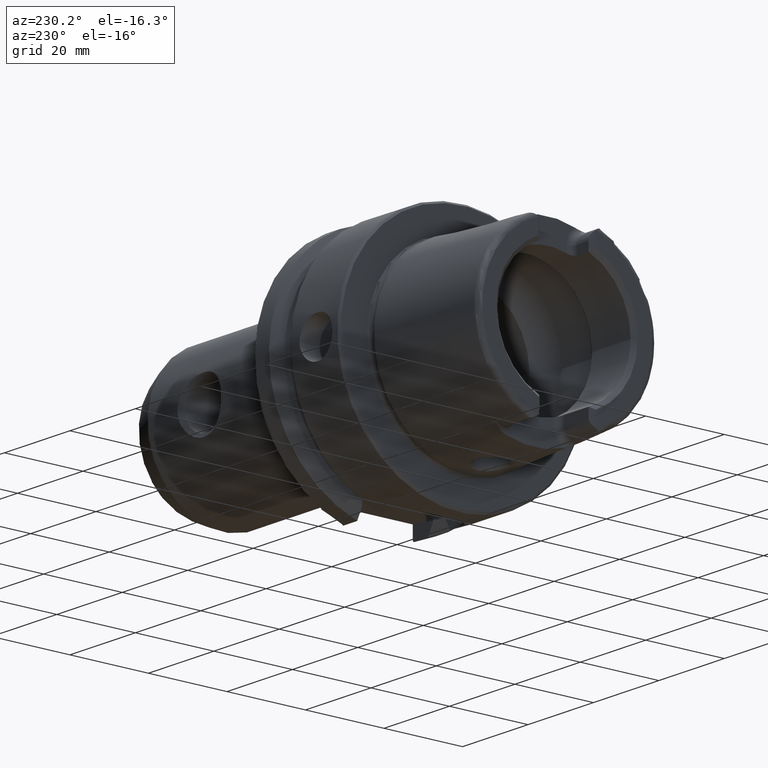
[diagram: clean part render]
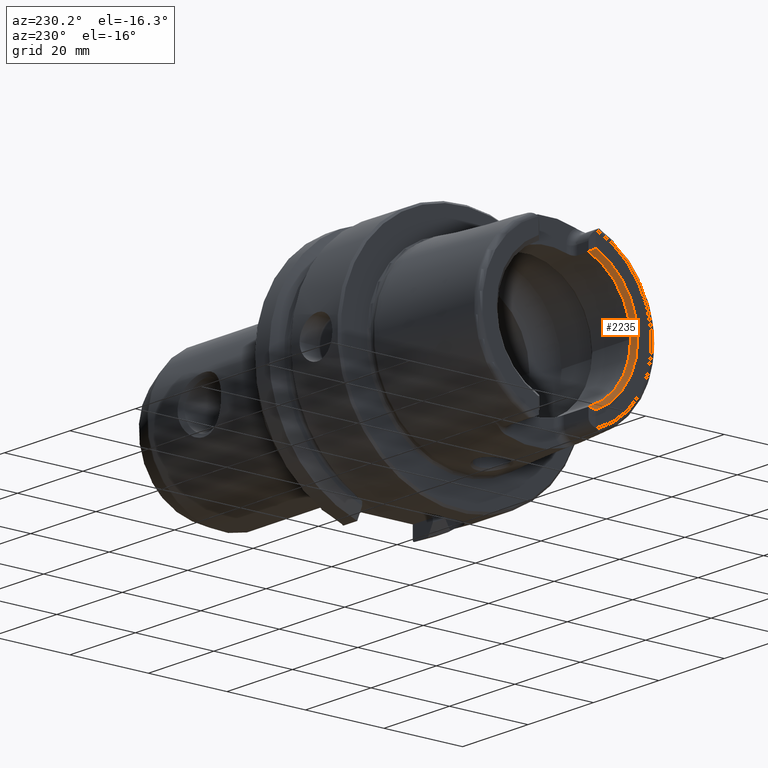
[diagram: same view with one face highlighted and labeled with its STEP entity id]
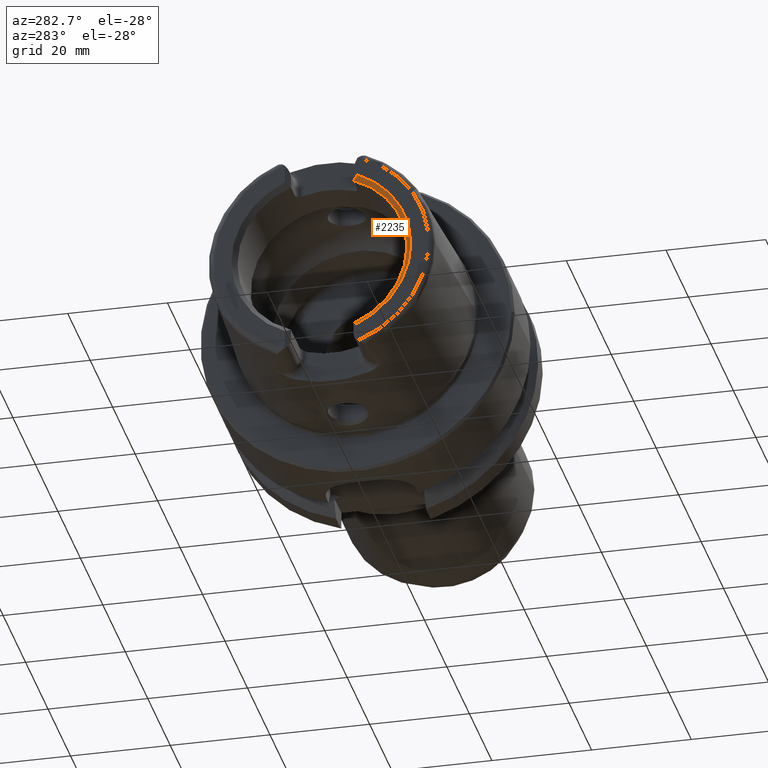
[diagram: same view with one face highlighted and labeled with its STEP entity id]
A machine part, auxiliary view. The second image highlights one B-rep face of the part: STEP entity #2235.
A second angle (auxiliary view) of the same face is appended — the face is thin or edge-on in the first view.
In plain terms, the highlighted conical surface has half-angle 45 deg.
Its self-contained STEP definition (entity closure, byte-faithful):
#15=(
BOUNDED_CURVE()
B_SPLINE_CURVE(2,(#3572,#3573,#3574),.UNSPECIFIED.,.F.,.F.)
B_SPLINE_CURVE_WITH_KNOTS((3,3),(0.,0.156279744968252),.UNSPECIFIED.)
CURVE()
GEOMETRIC_REPRESENTATION_ITEM()
RATIONAL_B_SPLINE_CURVE((1.,1.,1.))
REPRESENTATION_ITEM('')
);
#17=(
BOUNDED_CURVE()
B_SPLINE_CURVE(2,(#3686,#3687,#3688),.UNSPECIFIED.,.F.,.F.)
B_SPLINE_CURVE_WITH_KNOTS((3,3),(0.,0.156279744968251),.UNSPECIFIED.)
CURVE()
GEOMETRIC_REPRESENTATION_ITEM()
RATIONAL_B_SPLINE_CURVE((1.,1.,1.))
REPRESENTATION_ITEM('')
);
#343=FACE_OUTER_BOUND('',#486,.T.);
#486=EDGE_LOOP('',(#2033,#2034,#2035,#2036,#2037));
#843=CIRCLE('',#2497,17.);
#845=CIRCLE('',#2499,17.);
#850=CIRCLE('',#2509,18.);
#922=VERTEX_POINT('',#3569);
#923=VERTEX_POINT('',#3571);
#944=VERTEX_POINT('',#3683);
#945=VERTEX_POINT('',#3685);
#1075=VERTEX_POINT('',#4866);
#1161=EDGE_CURVE('',#922,#923,#15,.T.);
#1187=EDGE_CURVE('',#944,#945,#17,.T.);
#1395=EDGE_CURVE('',#944,#1075,#843,.T.);
#1397=EDGE_CURVE('',#1075,#923,#845,.T.);
#1402=EDGE_CURVE('',#922,#945,#850,.T.);
#2033=ORIENTED_EDGE('',*,*,#1161,.F.);
#2034=ORIENTED_EDGE('',*,*,#1402,.T.);
#2035=ORIENTED_EDGE('',*,*,#1187,.F.);
#2036=ORIENTED_EDGE('',*,*,#1395,.T.);
#2037=ORIENTED_EDGE('',*,*,#1397,.T.);
#2119=CONICAL_SURFACE('',#2510,17.5,0.785398163397448);
#2235=ADVANCED_FACE('',(#343),#2119,.F.);
#2497=AXIS2_PLACEMENT_3D('',#4868,#3098,#3099);
#2499=AXIS2_PLACEMENT_3D('',#4870,#3102,#3103);
#2509=AXIS2_PLACEMENT_3D('',#4880,#3122,#3123);
#2510=AXIS2_PLACEMENT_3D('',#4881,#3124,#3125);
#3098=DIRECTION('center_axis',(1.,0.,0.));
#3099=DIRECTION('ref_axis',(0.,-1.,0.));
#3102=DIRECTION('center_axis',(1.,0.,0.));
#3103=DIRECTION('ref_axis',(0.,-1.,0.));
#3122=DIRECTION('center_axis',(-1.,0.,0.));
#3123=DIRECTION('ref_axis',(0.,-1.,0.));
#3124=DIRECTION('center_axis',(-1.,0.,0.));
#3125=DIRECTION('ref_axis',(0.,-1.,0.));
#3569=CARTESIAN_POINT('',(-32.,-7.27,-16.4665448713444));
#3571=CARTESIAN_POINT('',(-31.,-6.27,-15.8014904360317));
#3572=CARTESIAN_POINT('Ctrl Pts',(-32.,-7.27,-16.4665448713444));
#3573=CARTESIAN_POINT('Ctrl Pts',(-31.4896948415209,-6.75969484152091,-16.1340176536882));
#3574=CARTESIAN_POINT('Ctrl Pts',(-31.,-6.27,-15.8014904360317));
#3683=CARTESIAN_POINT('',(-31.,-6.27,15.8014904360317));
#3685=CARTESIAN_POINT('',(-32.,-7.26999999999999,16.4665448713444));
#3686=CARTESIAN_POINT('Ctrl Pts',(-31.,-6.27,15.8014904360317));
#3687=CARTESIAN_POINT('Ctrl Pts',(-31.489694841521,-6.75969484152099,16.1340176536882));
#3688=CARTESIAN_POINT('Ctrl Pts',(-32.,-7.26999999999999,16.4665448713444));
#4866=CARTESIAN_POINT('',(-31.,-17.,2.0818995585505E-15));
#4868=CARTESIAN_POINT('Origin',(-31.,0.,0.));
#4870=CARTESIAN_POINT('Origin',(-31.,0.,0.));
#4880=CARTESIAN_POINT('Origin',(-32.,0.,0.));
#4881=CARTESIAN_POINT('Origin',(-31.5,0.,0.));